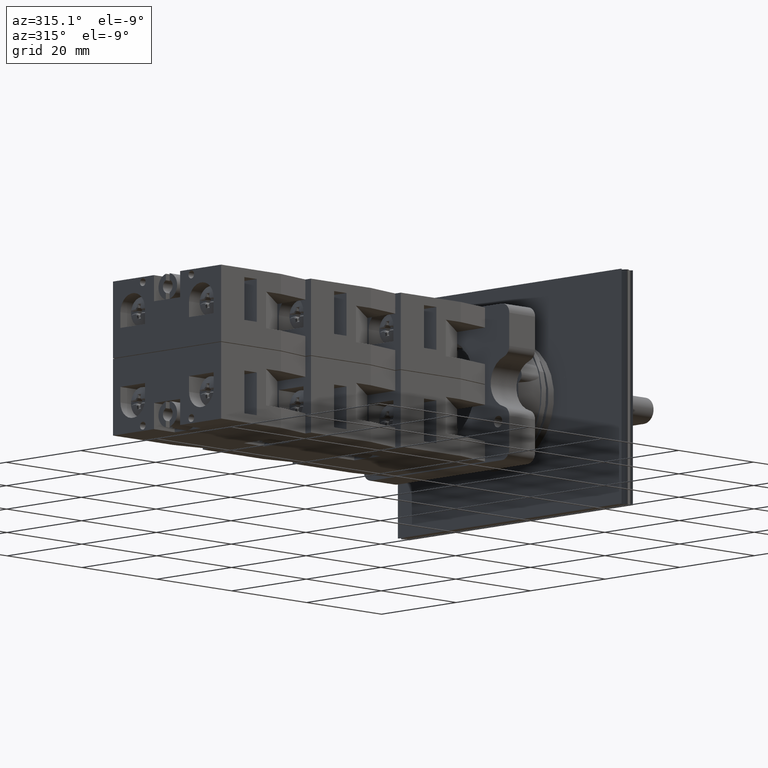
[diagram: clean part render]
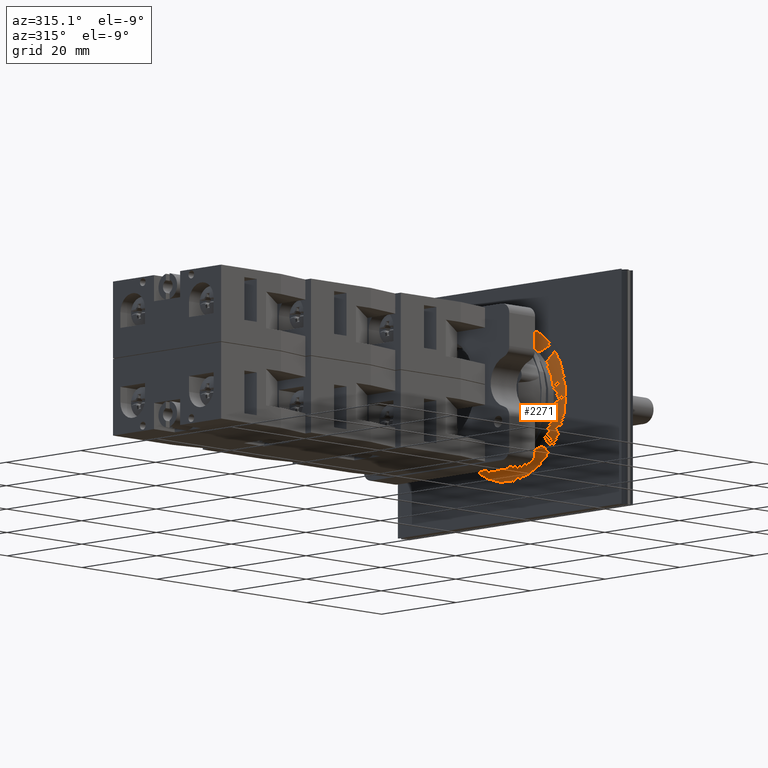
[diagram: same view with one face highlighted and labeled with its STEP entity id]
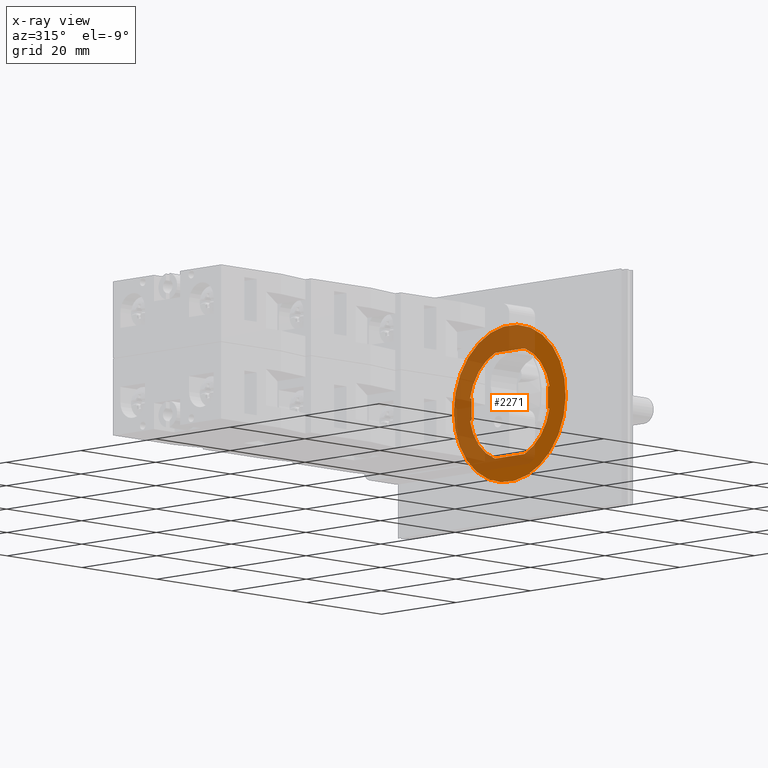
[diagram: x-ray of the same camera — body ghosted, the highlighted face saturated]
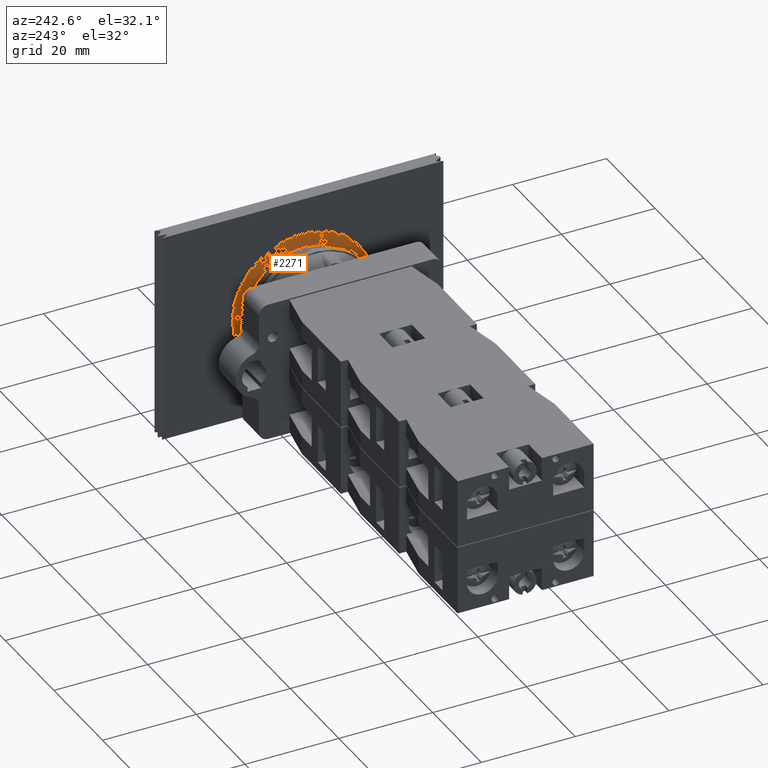
[diagram: same view with one face highlighted and labeled with its STEP entity id]
A machine part, auxiliary view. The second image highlights one B-rep face of the part: STEP entity #2271.
The next image is the same camera in x-ray: the body ghosted, the highlighted face saturated — about 59% of this face is hidden behind the body in this view.
A second angle (auxiliary view) of the same face is appended — the face is thin or edge-on in the first view.
In plain terms, the highlighted planar face has unit normal (-1, -0, -0).
Its self-contained STEP definition (entity closure, byte-faithful):
#1360=CARTESIAN_POINT('',(-9.312268159545239,-9.070160784272495,-2.149999999999998));
#1361=VERTEX_POINT('',#1360);
#1368=CARTESIAN_POINT('',(-9.312268159545239,-9.070160784272495,2.150000000000002));
#1369=VERTEX_POINT('',#1368);
#1370=CARTESIAN_POINT('',(-9.312268159545239,-9.070160784272495,-2.149999999999998));
#1371=DIRECTION('',(0.0,0.0,1.0));
#1372=VECTOR('',#1371,4.300000000000001);
#1373=LINE('',#1370,#1372);
#1374=EDGE_CURVE('',#1361,#1369,#1373,.T.);
#1750=CARTESIAN_POINT('',(-9.312268159545239,11.329839215727503,2.149999999999998));
#1751=VERTEX_POINT('',#1750);
#1758=CARTESIAN_POINT('',(-9.312268159545239,11.329839215727503,-2.150000000000002));
#1759=VERTEX_POINT('',#1758);
#1760=CARTESIAN_POINT('',(-9.312268159545239,11.329839215727503,2.149999999999998));
#1761=DIRECTION('',(0.0,0.0,-1.0));
#1762=VECTOR('',#1761,4.300000000000001);
#1763=LINE('',#1760,#1762);
#1764=EDGE_CURVE('',#1751,#1759,#1763,.T.);
#1934=CARTESIAN_POINT('',(-9.312268159545239,5.098466182324391,-10.125000000000000));
#1935=VERTEX_POINT('',#1934);
#1942=CARTESIAN_POINT('',(-9.312268159545239,-2.838787750869385,-10.125000000000000));
#1943=VERTEX_POINT('',#1942);
#1944=CARTESIAN_POINT('',(-9.312268159545239,5.098466182324391,-10.125000000000000));
#1945=DIRECTION('',(0.0,-1.0,0.0));
#1946=VECTOR('',#1945,7.937253933193777);
#1947=LINE('',#1944,#1946);
#1948=EDGE_CURVE('',#1935,#1943,#1947,.T.);
#2046=CARTESIAN_POINT('',(-9.312268159545239,-2.838787750869388,10.124999999999996));
#2047=VERTEX_POINT('',#2046);
#2054=CARTESIAN_POINT('',(-9.312268159545239,5.098466182324399,10.124999999999996));
#2055=VERTEX_POINT('',#2054);
#2056=CARTESIAN_POINT('',(-9.312268159545239,-2.838787750869388,10.124999999999996));
#2057=DIRECTION('',(0.0,1.0,0.0));
#2058=VECTOR('',#2057,7.937253933193787);
#2059=LINE('',#2056,#2058);
#2060=EDGE_CURVE('',#2047,#2055,#2059,.T.);
#2076=CARTESIAN_POINT('',(-9.312268159545239,11.790192164856348,2.149999999999998));
#2077=VERTEX_POINT('',#2076);
#2086=CARTESIAN_POINT('',(-9.312268159545239,11.790192164856348,2.149999999999998));
#2087=DIRECTION('',(0.0,-1.0,0.0));
#2088=VECTOR('',#2087,0.460352949128845);
#2089=LINE('',#2086,#2088);
#2090=EDGE_CURVE('',#2077,#1751,#2089,.T.);
#2109=CARTESIAN_POINT('',(-9.312268159545239,11.790192164856348,-2.150000000000002));
#2110=VERTEX_POINT('',#2109);
#2124=CARTESIAN_POINT('',(-9.312268159545239,11.329839215727503,-2.150000000000002));
#2125=DIRECTION('',(0.0,1.0,0.0));
#2126=VECTOR('',#2125,0.460352949128845);
#2127=LINE('',#2124,#2126);
#2128=EDGE_CURVE('',#1759,#2110,#2127,.T.);
#2147=CARTESIAN_POINT('',(-9.312268159545239,-9.530513733401339,2.150000000000002));
#2148=VERTEX_POINT('',#2147);
#2149=CARTESIAN_POINT('',(-9.312268159545239,-9.070160784272495,2.150000000000002));
#2150=DIRECTION('',(0.0,-1.0,0.0));
#2151=VECTOR('',#2150,0.460352949128843);
#2152=LINE('',#2149,#2151);
#2153=EDGE_CURVE('',#1369,#2148,#2152,.T.);
#2169=CARTESIAN_POINT('',(-9.312268159545239,-9.530513733401341,-2.149999999999999));
#2170=VERTEX_POINT('',#2169);
#2179=CARTESIAN_POINT('',(-9.312268159545239,-9.530513733401341,-2.149999999999999));
#2180=DIRECTION('',(0.0,1.0,0.0));
#2181=VECTOR('',#2180,0.460352949128845);
#2182=LINE('',#2179,#2181);
#2183=EDGE_CURVE('',#2170,#1361,#2182,.T.);
#2217=CARTESIAN_POINT('',(-9.312268159545239,14.629839215727504,0.0));
#2218=DIRECTION('',(-1.0,0.0,0.0));
#2219=DIRECTION('',(0.0,0.0,1.0));
#2220=AXIS2_PLACEMENT_3D('',#2217,#2218,#2219);
#2221=PLANE('',#2220);
#2222=CARTESIAN_POINT('',(-9.312268159545239,7.062611691764049,-13.776872313685111));
#2223=VERTEX_POINT('',#2222);
#2224=CARTESIAN_POINT('',(-9.312268159545239,1.129839215727505,0.0));
#2225=DIRECTION('',(1.0,0.0,0.0));
#2226=DIRECTION('',(0.0,1.0,0.0));
#2227=AXIS2_PLACEMENT_3D('',#2224,#2225,#2226);
#2228=CIRCLE('',#2227,15.0);
#2229=EDGE_CURVE('',#2223,#2223,#2228,.T.);
#2230=ORIENTED_EDGE('',*,*,#2229,.F.);
#2231=EDGE_LOOP('',(#2230));
#2232=FACE_OUTER_BOUND('',#2231,.T.);
#2233=ORIENTED_EDGE('',*,*,#2128,.F.);
#2234=ORIENTED_EDGE('',*,*,#1764,.F.);
#2235=ORIENTED_EDGE('',*,*,#2090,.F.);
#2236=CARTESIAN_POINT('',(-9.312268159545239,1.129839215727505,0.0));
#2237=DIRECTION('',(1.0,0.0,0.0));
#2238=DIRECTION('',(0.0,1.0,0.0));
#2239=AXIS2_PLACEMENT_3D('',#2236,#2237,#2238);
#2240=CIRCLE('',#2239,10.875000000000002);
#2241=EDGE_CURVE('',#2077,#2055,#2240,.T.);
#2242=ORIENTED_EDGE('',*,*,#2241,.T.);
#2243=ORIENTED_EDGE('',*,*,#2060,.F.);
#2244=CARTESIAN_POINT('',(-9.312268159545239,1.129839215727505,0.0));
#2245=DIRECTION('',(1.0,0.0,0.0));
#2246=DIRECTION('',(0.0,1.0,0.0));
#2247=AXIS2_PLACEMENT_3D('',#2244,#2245,#2246);
#2248=CIRCLE('',#2247,10.875000000000002);
#2249=EDGE_CURVE('',#2047,#2148,#2248,.T.);
#2250=ORIENTED_EDGE('',*,*,#2249,.T.);
#2251=ORIENTED_EDGE('',*,*,#2153,.F.);
#2252=ORIENTED_EDGE('',*,*,#1374,.F.);
#2253=ORIENTED_EDGE('',*,*,#2183,.F.);
#2254=CARTESIAN_POINT('',(-9.312268159545239,1.129839215727505,0.0));
#2255=DIRECTION('',(1.0,0.0,0.0));
#2256=DIRECTION('',(0.0,1.0,0.0));
#2257=AXIS2_PLACEMENT_3D('',#2254,#2255,#2256);
#2258=CIRCLE('',#2257,10.875000000000002);
#2259=EDGE_CURVE('',#2170,#1943,#2258,.T.);
#2260=ORIENTED_EDGE('',*,*,#2259,.T.);
#2261=ORIENTED_EDGE('',*,*,#1948,.F.);
#2262=CARTESIAN_POINT('',(-9.312268159545239,1.129839215727505,0.0));
#2263=DIRECTION('',(1.0,0.0,0.0));
#2264=DIRECTION('',(0.0,1.0,0.0));
#2265=AXIS2_PLACEMENT_3D('',#2262,#2263,#2264);
#2266=CIRCLE('',#2265,10.875000000000002);
#2267=EDGE_CURVE('',#1935,#2110,#2266,.T.);
#2268=ORIENTED_EDGE('',*,*,#2267,.T.);
#2269=EDGE_LOOP('',(#2233,#2234,#2235,#2242,#2243,#2250,#2251,#2252,#2253,#2260,#2261,#2268));
#2270=FACE_BOUND('',#2269,.T.);
#2271=ADVANCED_FACE('',(#2232,#2270),#2221,.T.);